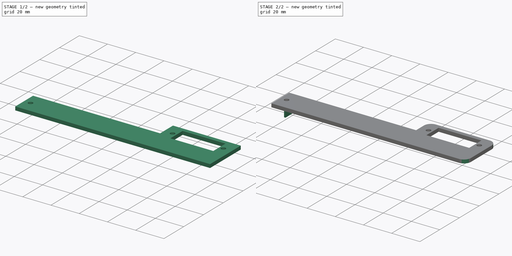
[diagram: build sequence overview — one tinted view per stage of 2, left to right]
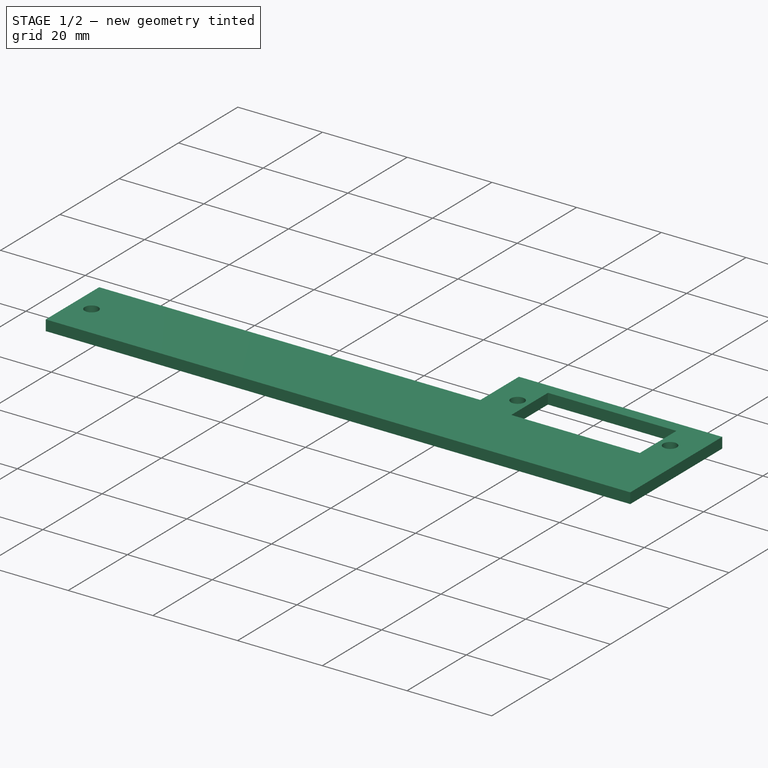
[diagram: stage 1 of 2 — iso view after this stage's code; geometry added in this stage tinted green]
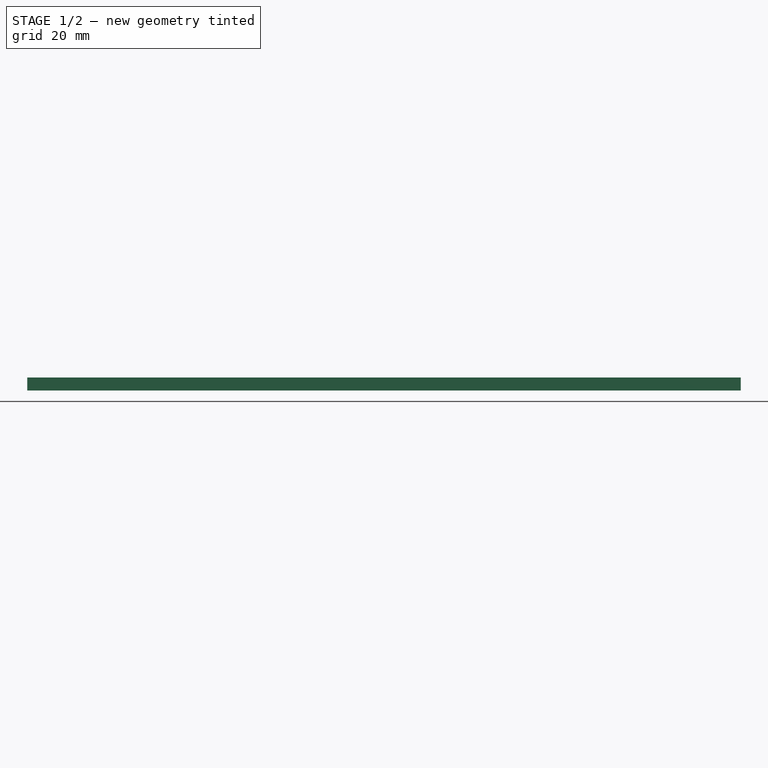
[diagram: stage 1 of 2 — front view after this stage's code; geometry added in this stage tinted green]
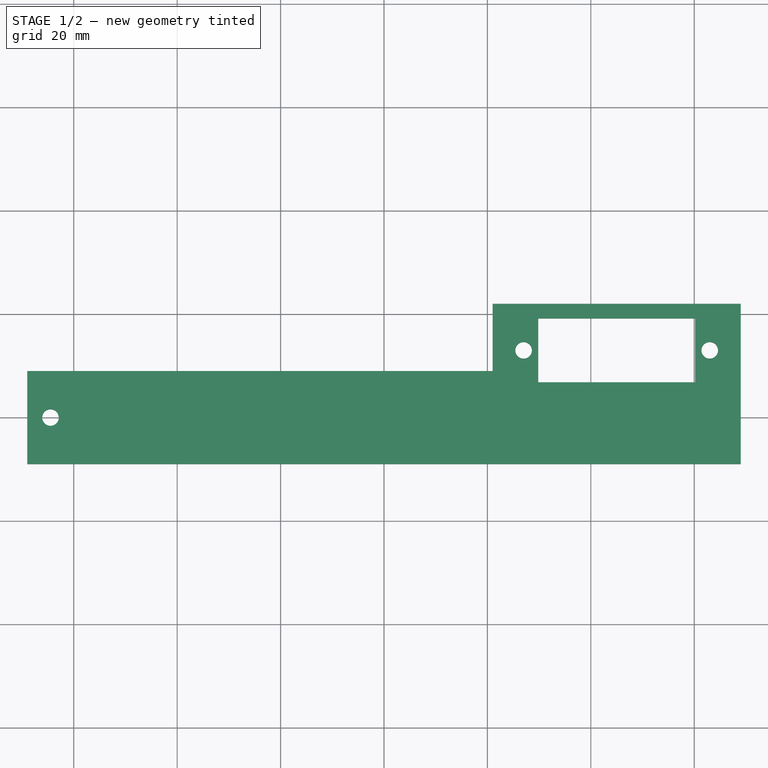
[diagram: stage 1 of 2 — top view after this stage's code; geometry added in this stage tinted green]
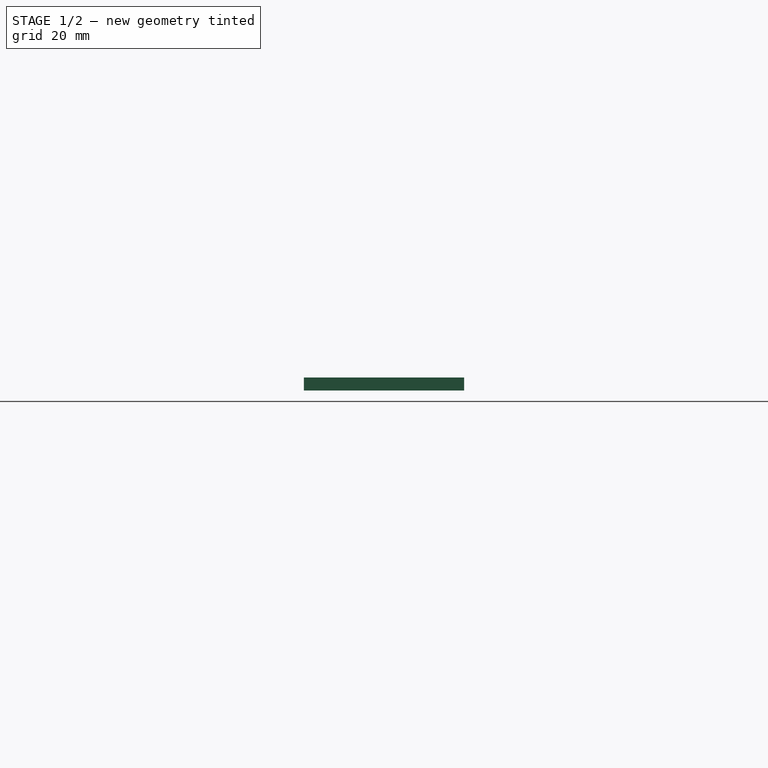
[diagram: stage 1 of 2 — right view after this stage's code; geometry added in this stage tinted green]
FCSTD DOCUMENT  (FreeCAD 0.16R5239 (Git))
Label: servomount
License: All rights reserved
LicenseURL: http://en.wikipedia.org/wiki/All_rights_reserved
objects: Sketcher::SketchObject×3, PartDesign::Pad×2, PartDesign::Pocket×1, PartDesign::Fillet×1
note: 10 computed .brp shape members not serialized (recipe doc carries the construction recipe); baked Part::Feature solids carry a one-line shape summary decoded from their .brp

FEATURE [Sketcher::SketchObject] Sketch
  sketch-geometry (7):
    g0: LineSegment StartX=-69 StartY=9 StartZ=0 EndX=21 EndY=9 EndZ=0
    g1: LineSegment StartX=69 StartY=10.0438 StartZ=0 EndX=69 EndY=-9 EndZ=0
    g2: LineSegment StartX=69 StartY=-9 StartZ=0 EndX=-69 EndY=-9 EndZ=0
    g3: LineSegment StartX=-69 StartY=-9 StartZ=0 EndX=-69 EndY=9 EndZ=0
    g4: LineSegment StartX=21 StartY=9 StartZ=0 EndX=21 EndY=22 EndZ=0
    g5: LineSegment StartX=21 StartY=22 StartZ=0 EndX=69 EndY=22 EndZ=0
    g6: LineSegment StartX=69 StartY=22 StartZ=0 EndX=69 EndY=10.0438 EndZ=0
  constraints (20):
    c: Coincident(g1,g2)
    c: Coincident(g2,g3)
    c: Coincident(g3,g0)
    c: Horizontal(g0)
    c: Horizontal(g2)
    c: Vertical(g1)
    c: Vertical(g3)
    c: DistanceY(g3) = 18
    c: Symmetric(g0,g2,g-1)
    c: Vertical(g4)
    c: Coincident(g4,g5)
    c: Horizontal(g5)
    c: Coincident(g5,g6)
    c: Coincident(g6,g1)
    c: Vertical(g6)
    c: Coincident(g0,g4)
    c: DistanceX(g2) = -138
    c: DistanceX(g5) = 48
    c: Symmetric(g2,g1,g-2)
    c: DistanceY(g4) = 13
FEATURE [PartDesign::Pad] Pad
  Length = 2.5
  Length2 = 100
  Sketch = -> Sketch
  Type = 0
FEATURE [Sketcher::SketchObject] Sketch001
  ExternalGeometry = -> [Pad]
  Placement = pos=(0,0,2.5) rot=(0,0,1;0rad)
  Support = -> Pad [Face9]
  sketch-geometry (12):
    g0: Circle CenterX=-64.5 CenterY=0 CenterZ=0 NormalX=0 NormalY=0 NormalZ=1 Radius=1.6
    g1: Circle CenterX=27 CenterY=13 CenterZ=0 NormalX=0 NormalY=0 NormalZ=1 Radius=1.6
    g2: Circle CenterX=63 CenterY=13 CenterZ=0 NormalX=0 NormalY=0 NormalZ=1 Radius=1.6
    g3: LineSegment StartX=29.825 StartY=19.175 StartZ=0 EndX=60.175 EndY=19.175 EndZ=0
    g4: LineSegment StartX=60.175 StartY=19.175 StartZ=0 EndX=60.175 EndY=6.825 EndZ=0
    g5: LineSegment StartX=60.175 StartY=6.825 StartZ=0 EndX=29.825 EndY=6.825 EndZ=0
    g6: LineSegment StartX=29.825 StartY=6.825 StartZ=0 EndX=29.825 EndY=19.175 EndZ=0
    g7: LineSegment [constr] StartX=-60 StartY=9 StartZ=0 EndX=-60 EndY=-9 EndZ=0
    g8: LineSegment [constr] StartX=29.825 StartY=19.175 StartZ=0 EndX=45 EndY=13 EndZ=0
    g9: LineSegment [constr] StartX=45 StartY=13 StartZ=0 EndX=60.175 EndY=6.825 EndZ=0
    g10: LineSegment [constr] StartX=27 StartY=13 StartZ=0 EndX=45 EndY=13 EndZ=0
    g11: LineSegment [constr] StartX=45 StartY=13 StartZ=0 EndX=63 EndY=13 EndZ=0
  constraints (34):
    c: Radius(g0) = 1.6
    c: PointOnObject(g0,g-1)
    c: Radius(g1) = 1.6
    c: Equal(g2,g1)
    c: DistanceX(g1,g2) = 36
    c: Coincident(g3,g4)
    c: Coincident(g4,g5)
    c: Coincident(g5,g6)
    c: Coincident(g6,g3)
    c: Horizontal(g3)
    c: Horizontal(g5)
    c: Vertical(g4)
    c: Vertical(g6)
    c: DistanceX(g3) = 30.35
    c: DistanceY(g6) = 12.35
    c: PointOnObject(g7,g-4)
    c: PointOnObject(g7,g-5)
    c: Vertical(g7)
    c: DistanceX(g7,g-4) = -9
    c: DistanceX(g7,g1) = 87
    c: Coincident(g3,g8)
    c: Coincident(g8,g9)
    c: Coincident(g9,g4)
    c: Equal(g8,g9)
    c: Parallel(g8,g9)
    c: DistanceY(g-1,g8) = 13
    c: Coincident(g10,g8)
    c: Coincident(g10,g11)
    c: Coincident(g11,g2)
    c: Coincident(g10,g1)
    c: Horizontal(g10)
    c: Horizontal(g11)
    c: Equal(g10,g11)
    c: DistanceX(g0,g-4) = -4.5
FEATURE [PartDesign::Pocket] Pocket
  Length = 5
  Sketch = -> Sketch001
  Type = 0
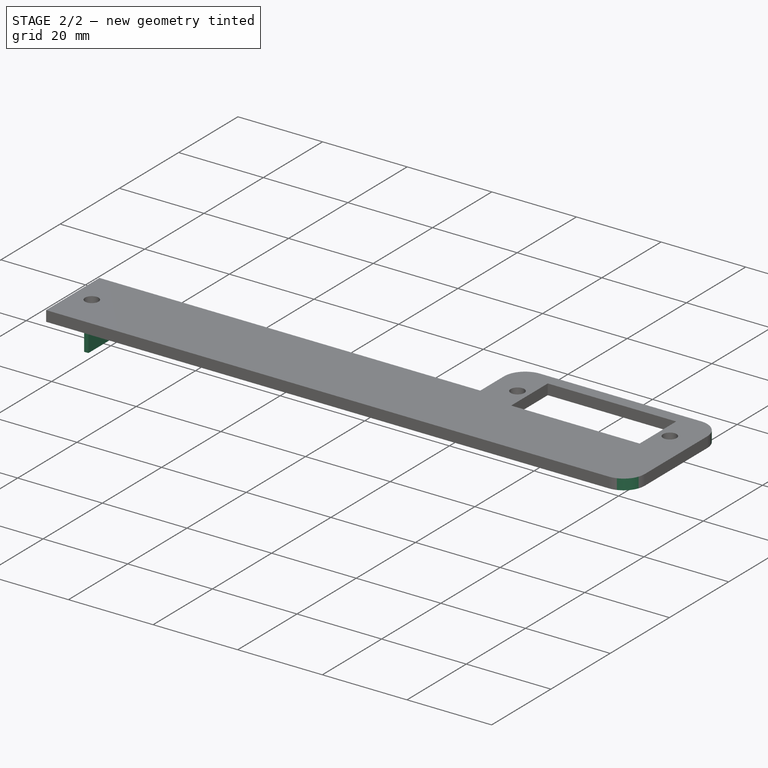
[diagram: stage 2 of 2 — iso view after this stage's code; geometry added in this stage tinted green]
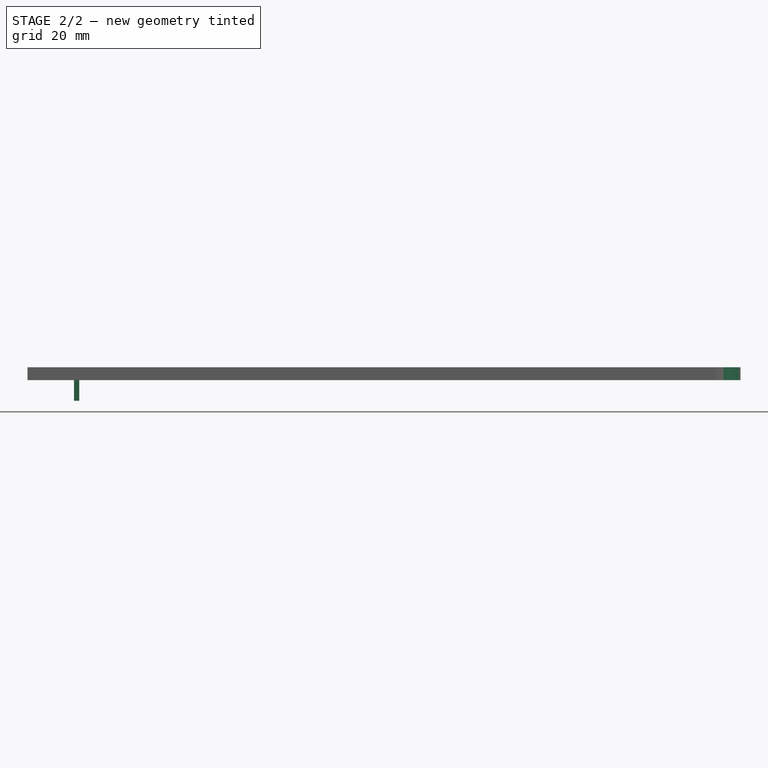
[diagram: stage 2 of 2 — front view after this stage's code; geometry added in this stage tinted green]
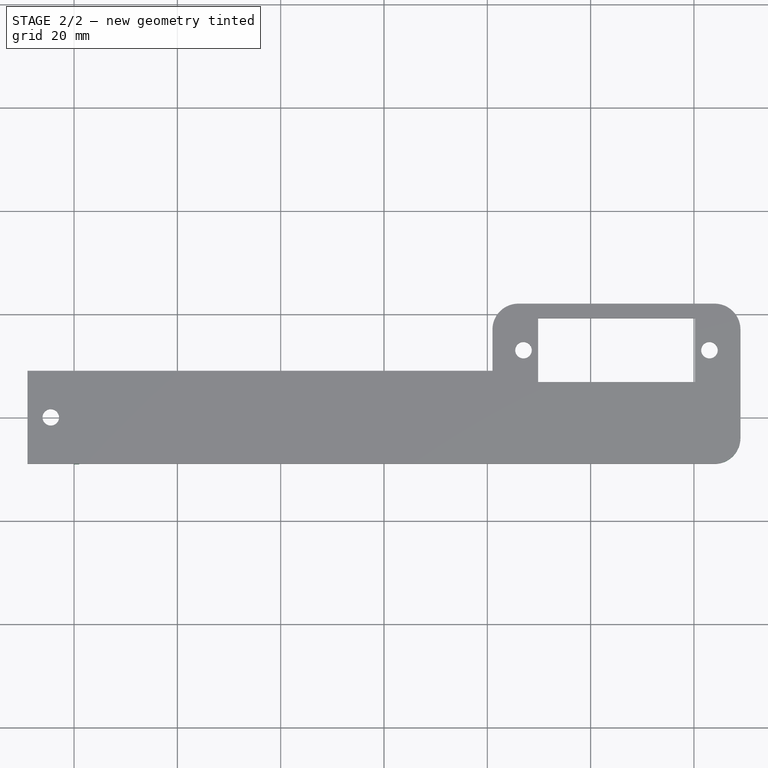
[diagram: stage 2 of 2 — top view after this stage's code; geometry added in this stage tinted green]
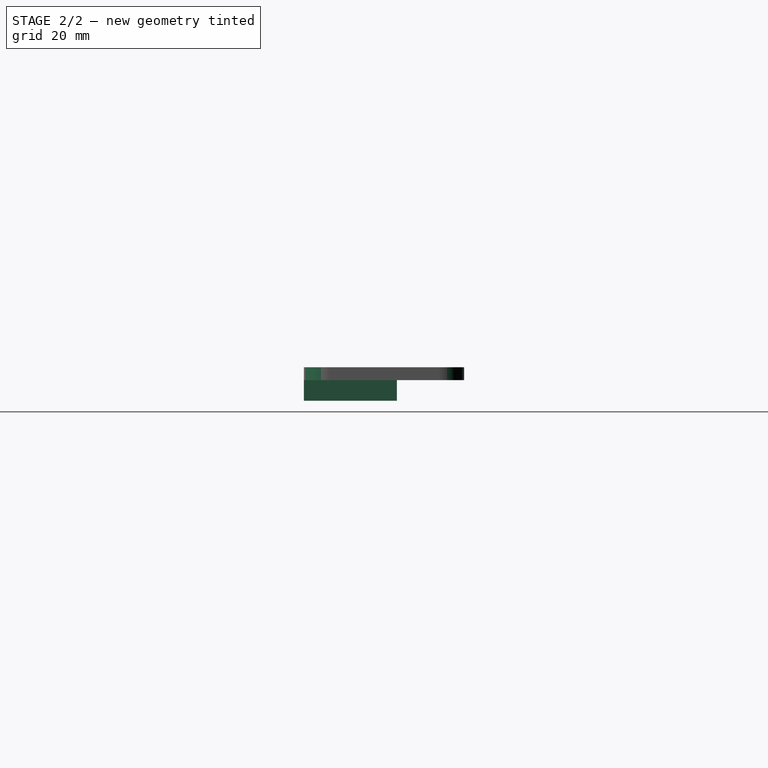
[diagram: stage 2 of 2 — right view after this stage's code; geometry added in this stage tinted green]
FEATURE [Sketcher::SketchObject] Sketch002
  ExternalGeometry = -> [Pocket]
  Placement = pos=(0,0,0) rot=(1,0,0;3.14159rad)
  Support = -> Pocket [Face4]
  sketch-geometry (4):
    g0: LineSegment StartX=-60 StartY=9 StartZ=0 EndX=-59 EndY=9 EndZ=0
    g1: LineSegment StartX=-59 StartY=9 StartZ=0 EndX=-59 EndY=-9 EndZ=0
    g2: LineSegment StartX=-59 StartY=-9 StartZ=0 EndX=-60 EndY=-9 EndZ=0
    g3: LineSegment StartX=-60 StartY=-9 StartZ=0 EndX=-60 EndY=9 EndZ=0
  constraints (12):
    c: Coincident(g0,g1)
    c: Coincident(g1,g2)
    c: Coincident(g2,g3)
    c: Coincident(g3,g0)
    c: Horizontal(g0)
    c: Horizontal(g2)
    c: Vertical(g1)
    c: Vertical(g3)
    c: DistanceX(g0,g-3) = -9
    c: DistanceX(g0) = 1
    c: PointOnObject(g2,g-4)
    c: PointOnObject(g0,g-3)
FEATURE [PartDesign::Pad] Pad001
  Length = 4
  Length2 = 100
  Sketch = -> Sketch002
  Type = 0
FEATURE [PartDesign::Fillet] Fillet
  Base = -> Pad001 [Edge49,Edge46,Edge5]
  Radius = 5
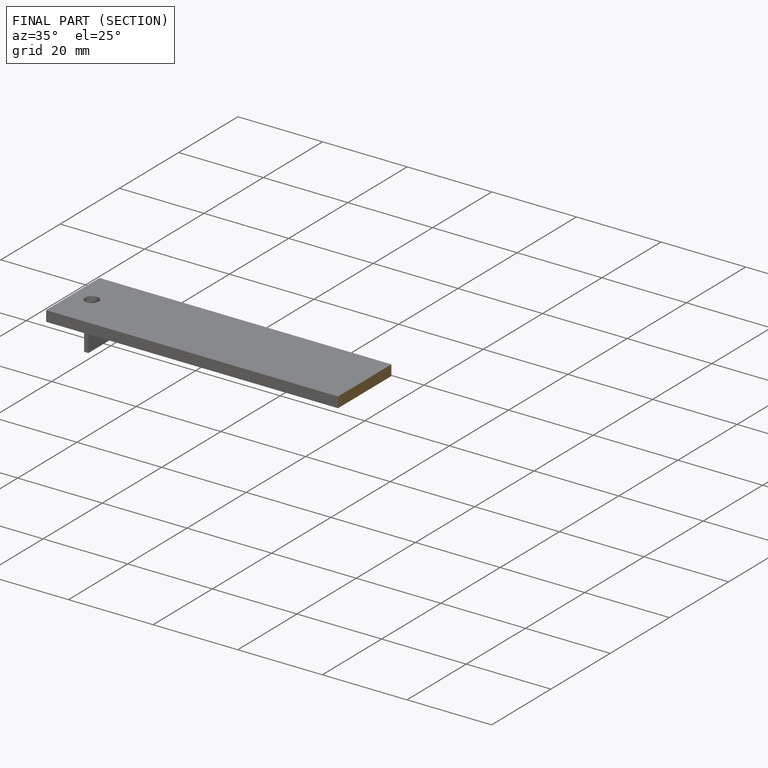
[diagram: finished part — half-section view (interior)]
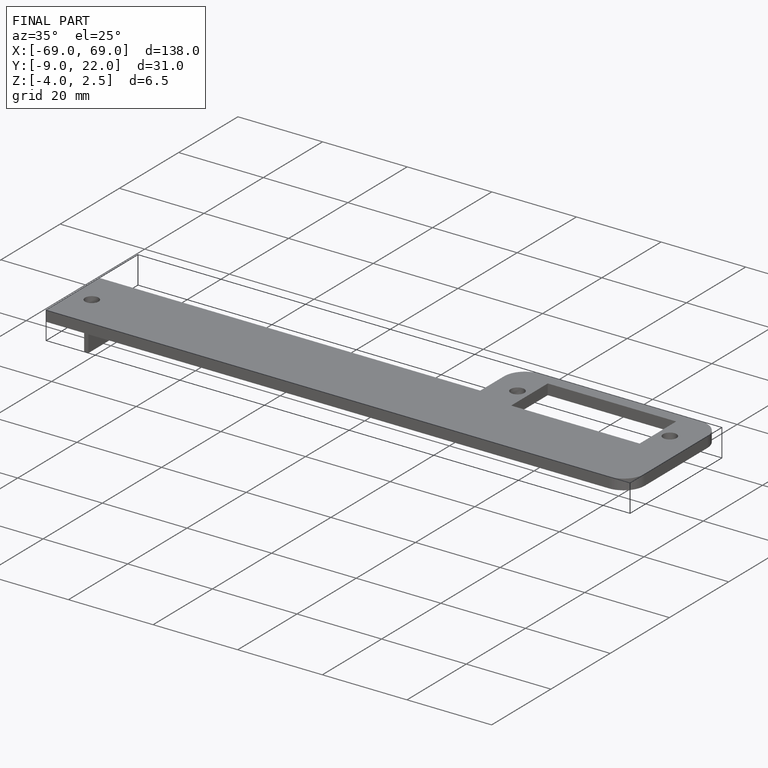
[diagram: finished part — iso view with bounding-box wireframe]
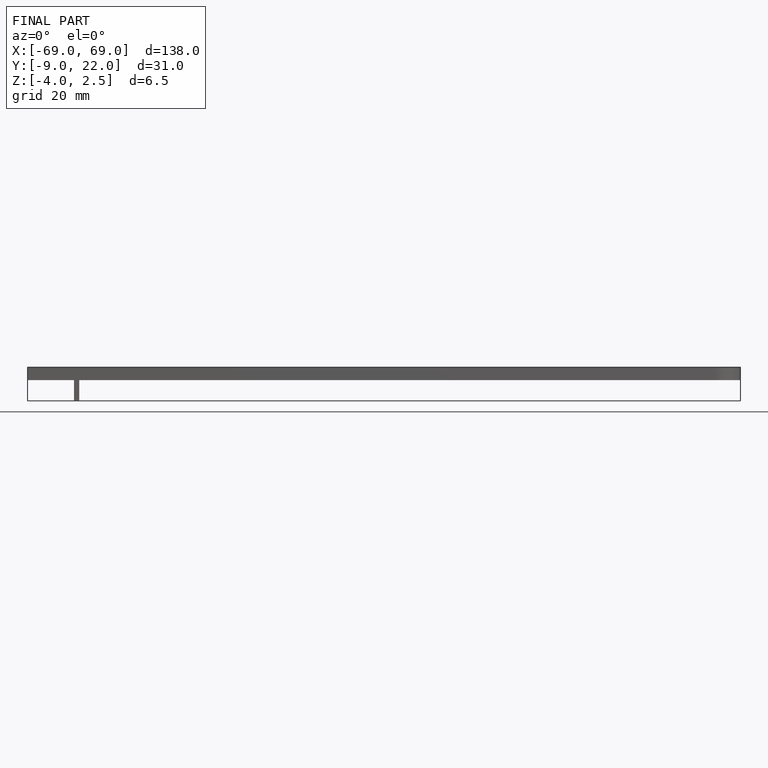
[diagram: finished part — front view with bounding-box wireframe]
